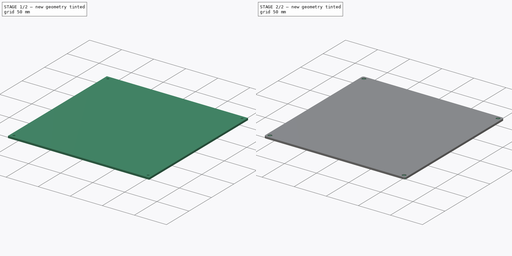
[diagram: build sequence overview — one tinted view per stage of 2, left to right]
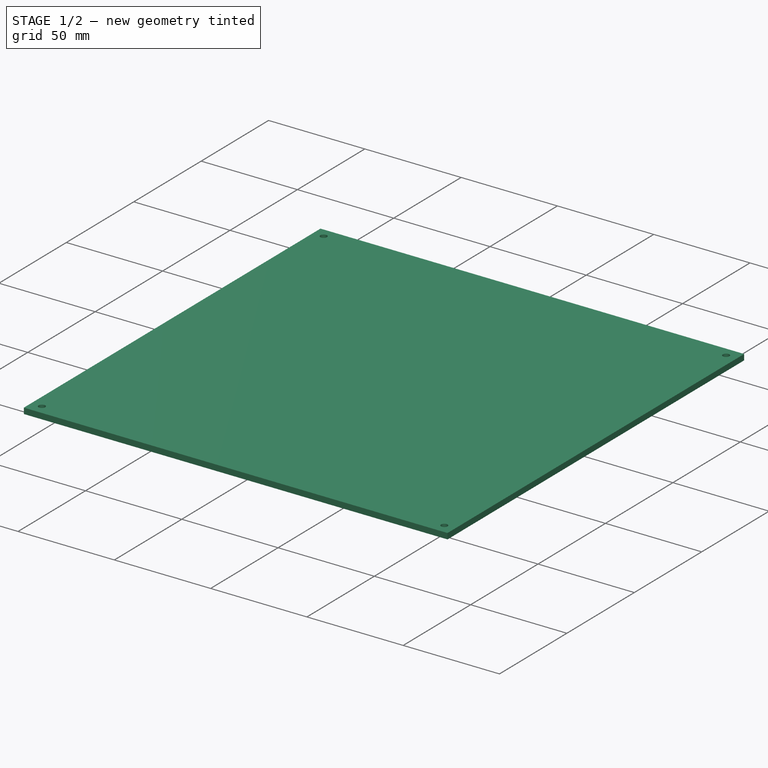
[diagram: stage 1 of 2 — iso view after this stage's code; geometry added in this stage tinted green]
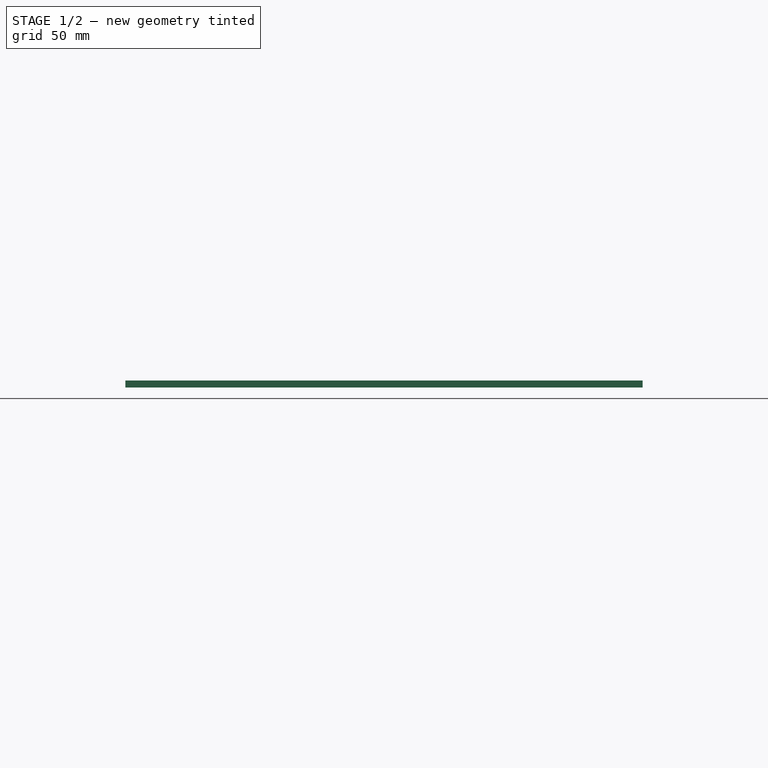
[diagram: stage 1 of 2 — front view after this stage's code; geometry added in this stage tinted green]
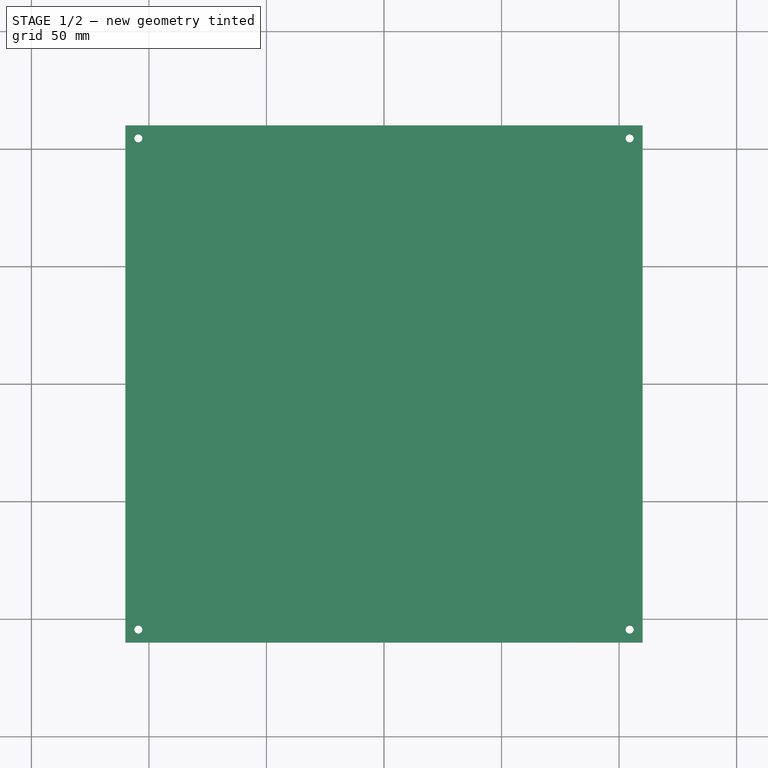
[diagram: stage 1 of 2 — top view after this stage's code; geometry added in this stage tinted green]
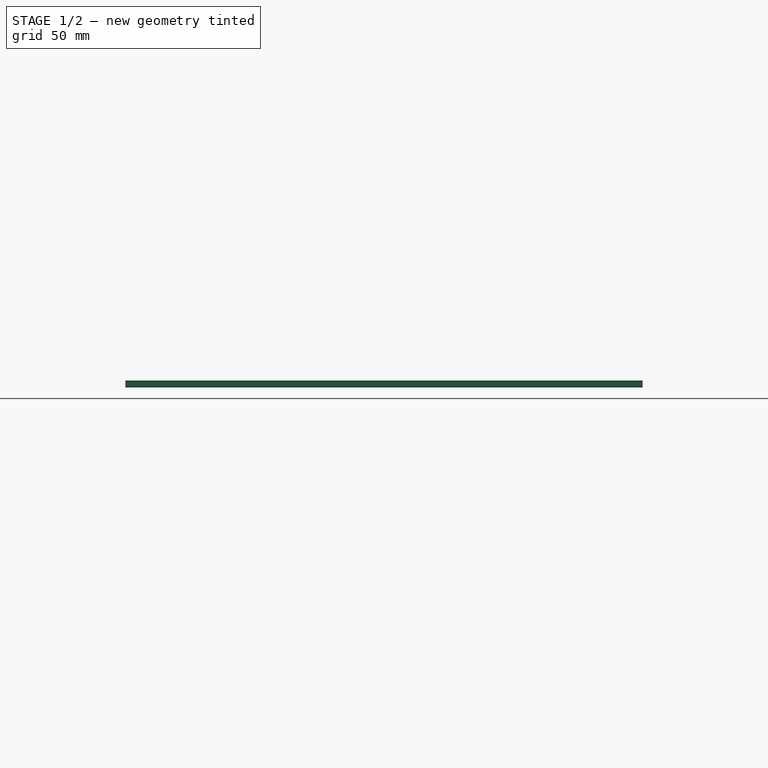
[diagram: stage 1 of 2 — right view after this stage's code; geometry added in this stage tinted green]
FCSTD DOCUMENT  (FreeCAD 0.17R13387 (Git))
Label: Hotbed_220x220x3
License: All rights reserved
LicenseURL: http://en.wikipedia.org/wiki/All_rights_reserved
objects: Sketcher::SketchObject×3, PartDesign::Pocket×2, PartDesign::Pad×1, PartDesign::Fillet×1, PartDesign::Body×1
note: 11 computed .brp shape members not serialized (recipe doc carries the construction recipe); baked Part::Feature solids carry a one-line shape summary decoded from their .brp

FEATURE [Sketcher::SketchObject] Sketch
  MapMode = 5
  Support = -> [XY_Plane]
  sketch-geometry (4):
    g0: LineSegment StartX=-110 StartY=110 StartZ=0 EndX=110 EndY=110 EndZ=0
    g1: LineSegment StartX=110 StartY=110 StartZ=0 EndX=110 EndY=-110 EndZ=0
    g2: LineSegment StartX=110 StartY=-110 StartZ=0 EndX=-110 EndY=-110 EndZ=0
    g3: LineSegment StartX=-110 StartY=-110 StartZ=0 EndX=-110 EndY=110 EndZ=0
  constraints (12):
    c: Coincident(g0,g1)
    c: Coincident(g1,g2)
    c: Coincident(g2,g3)
    c: Coincident(g3,g0)
    c: Horizontal(g0)
    c: Horizontal(g2)
    c: Vertical(g1)
    c: Vertical(g3)
    c: DistanceX(g0,g0) = 220
    c: DistanceY(g1,g1) = 220
    c: DistanceX(g0) = 110
    c: DistanceY(g0) = 110
FEATURE [PartDesign::Pad] Pad
  Length = 3
  Length2 = 100
  Profile = -> Sketch
  Type = 0
FEATURE [Sketcher::SketchObject] Sketch001
  MapMode = 5
  Placement = pos=(0,0,3) rot=(0,0,1;0rad)
  Support = -> [Pad]
  sketch-geometry (8):
    g0: LineSegment [constr] StartX=-104.5 StartY=104.5 StartZ=0 EndX=104.5 EndY=104.5 EndZ=0
    g1: LineSegment [constr] StartX=104.5 StartY=104.5 StartZ=0 EndX=104.5 EndY=-104.5 EndZ=0
    g2: LineSegment [constr] StartX=104.5 StartY=-104.5 StartZ=0 EndX=-104.5 EndY=-104.5 EndZ=0
    g3: LineSegment [constr] StartX=-104.5 StartY=-104.5 StartZ=0 EndX=-104.5 EndY=104.5 EndZ=0
    g4: Circle CenterX=-104.5 CenterY=104.5 CenterZ=0 NormalX=0 NormalY=0 NormalZ=1 AngleXU=0 Radius=1.7
    g5: Circle CenterX=-104.5 CenterY=-104.5 CenterZ=0 NormalX=0 NormalY=0 NormalZ=1 AngleXU=0 Radius=1.7
    g6: Circle CenterX=104.5 CenterY=-104.5 CenterZ=0 NormalX=0 NormalY=0 NormalZ=1 AngleXU=0 Radius=1.7
    g7: Circle CenterX=104.5 CenterY=104.5 CenterZ=0 NormalX=0 NormalY=0 NormalZ=1 AngleXU=0 Radius=1.7
  constraints (20):
    c: Coincident(g0,g1)
    c: Coincident(g1,g2)
    c: Coincident(g2,g3)
    c: Coincident(g3,g0)
    c: Horizontal(g0)
    c: Horizontal(g2)
    c: Vertical(g1)
    c: Vertical(g3)
    c: DistanceX(g0,g0) = 209
    c: DistanceY(g1,g1) = 209
    c: DistanceX(g0) = 104.5
    c: DistanceY(g0) = 104.5
    c: Coincident(g4,g0)
    c: Coincident(g5,g2)
    c: Coincident(g6,g1)
    c: Coincident(g7,g0)
    c: Equal(g4,g5)
    c: Equal(g5,g6)
    c: Equal(g6,g7)
    c: Radius(g4) = 1.7
FEATURE [PartDesign::Pocket] Pocket
  BaseFeature = -> Pad
  Length = 5
  Length2 = 100
  Profile = -> Sketch001
  Type = 1
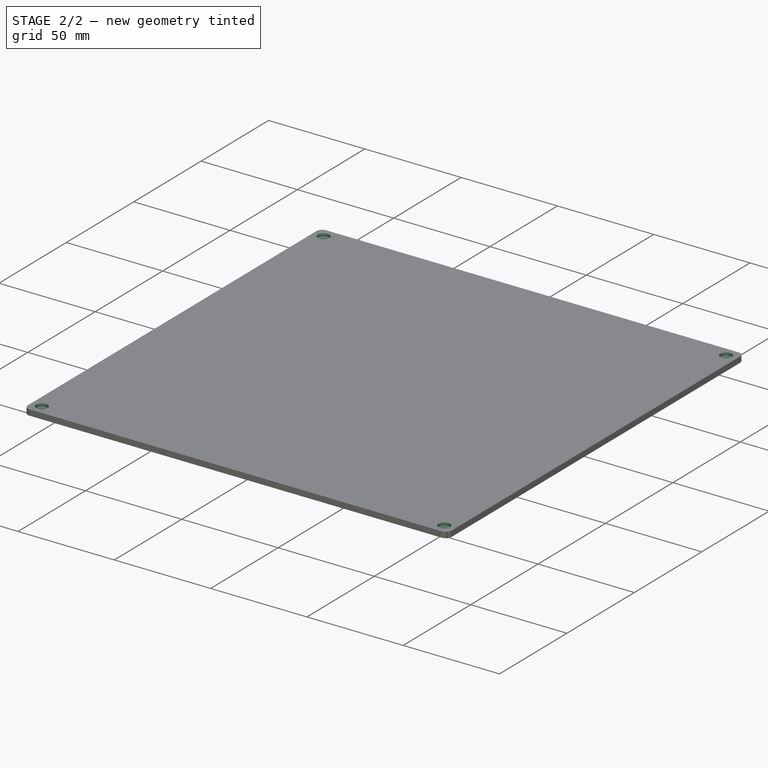
[diagram: stage 2 of 2 — iso view after this stage's code; geometry added in this stage tinted green]
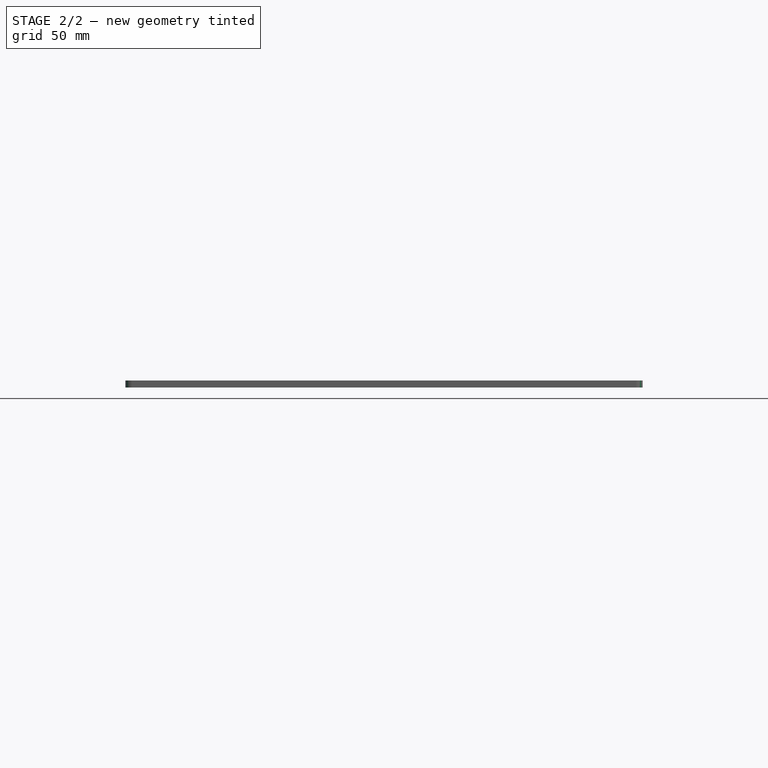
[diagram: stage 2 of 2 — front view after this stage's code; geometry added in this stage tinted green]
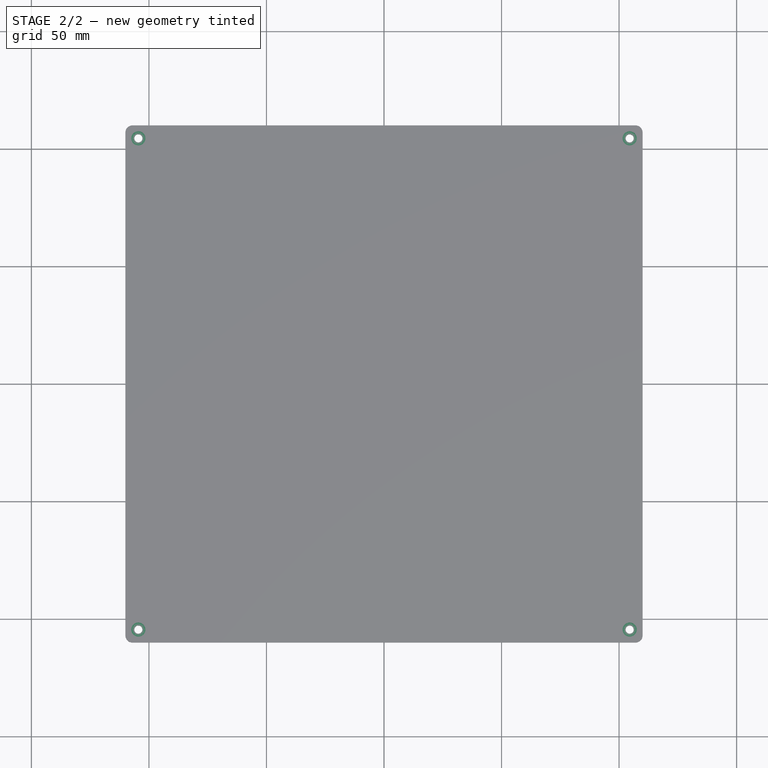
[diagram: stage 2 of 2 — top view after this stage's code; geometry added in this stage tinted green]
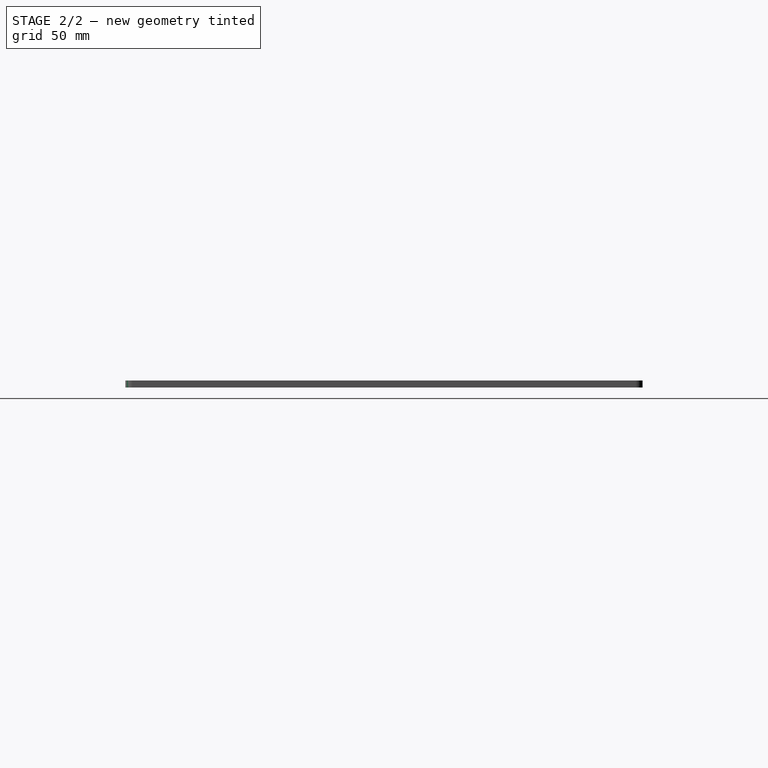
[diagram: stage 2 of 2 — right view after this stage's code; geometry added in this stage tinted green]
FEATURE [Sketcher::SketchObject] Sketch002
  MapMode = 5
  Placement = pos=(0,0,3) rot=(0,0,1;0rad)
  Support = -> [Pocket]
  sketch-geometry (8):
    g0: LineSegment [constr] StartX=-104.5 StartY=104.5 StartZ=0 EndX=104.5 EndY=104.5 EndZ=0
    g1: LineSegment [constr] StartX=104.5 StartY=104.5 StartZ=0 EndX=104.5 EndY=-104.5 EndZ=0
    g2: LineSegment [constr] StartX=104.5 StartY=-104.5 StartZ=0 EndX=-104.5 EndY=-104.5 EndZ=0
    g3: LineSegment [constr] StartX=-104.5 StartY=-104.5 StartZ=0 EndX=-104.5 EndY=104.5 EndZ=0
    g4: Circle CenterX=-104.5 CenterY=104.5 CenterZ=0 NormalX=0 NormalY=0 NormalZ=1 AngleXU=0 Radius=3
    g5: Circle CenterX=-104.5 CenterY=-104.5 CenterZ=0 NormalX=0 NormalY=0 NormalZ=1 AngleXU=0 Radius=3
    g6: Circle CenterX=104.5 CenterY=-104.5 CenterZ=0 NormalX=0 NormalY=0 NormalZ=1 AngleXU=0 Radius=3
    g7: Circle CenterX=104.5 CenterY=104.5 CenterZ=0 NormalX=0 NormalY=0 NormalZ=1 AngleXU=0 Radius=3
  constraints (20):
    c: Coincident(g0,g1)
    c: Coincident(g1,g2)
    c: Coincident(g2,g3)
    c: Coincident(g3,g0)
    c: Horizontal(g0)
    c: Horizontal(g2)
    c: Vertical(g1)
    c: Vertical(g3)
    c: DistanceX(g0,g0) = 209
    c: DistanceY(g1,g1) = 209
    c: DistanceX(g0) = 104.5
    c: DistanceY(g0) = 104.5
    c: Coincident(g4,g0)
    c: Coincident(g5,g2)
    c: Coincident(g6,g1)
    c: Coincident(g7,g0)
    c: Equal(g4,g5)
    c: Equal(g5,g6)
    c: Equal(g6,g7)
    c: Radius(g4) = 3
FEATURE [PartDesign::Pocket] Pocket001
  BaseFeature = -> Pocket
  Length = 1.5
  Length2 = 100
  Profile = -> Sketch002
  Type = 0
FEATURE [PartDesign::Fillet] Fillet
  Base = -> Pocket001 [Edge1,Edge5,Edge8,Edge2]
  BaseFeature = -> Pocket001
  Radius = 3
FEATURE [PartDesign::Body] Body
  Group = -> [Sketch,Pad,Sketch001,Pocket,Sketch002,Pocket001,Fillet]
  Origin = -> Origin
  Tip = -> Fillet
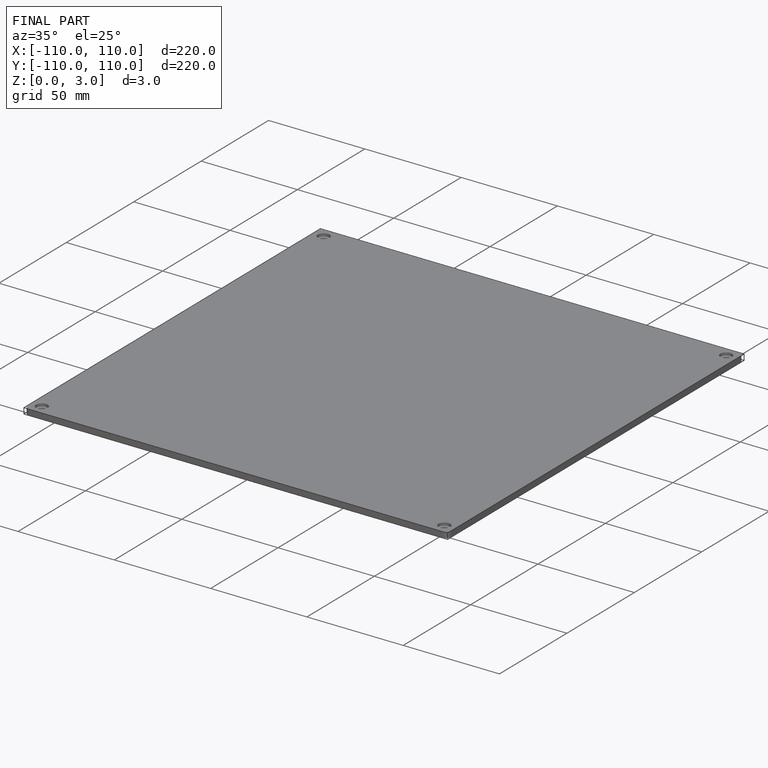
[diagram: finished part — iso view with bounding-box wireframe]
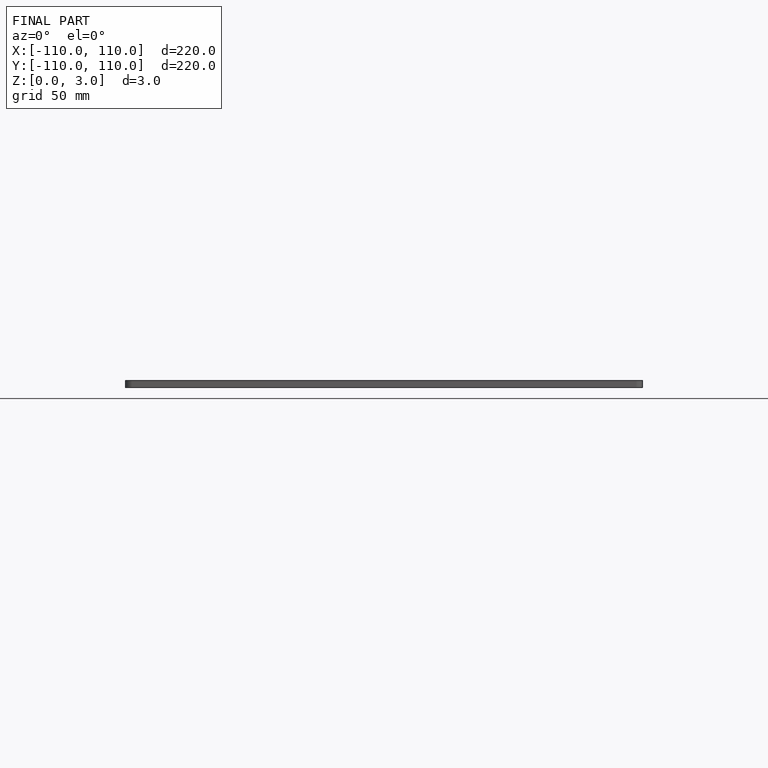
[diagram: finished part — front view with bounding-box wireframe]
